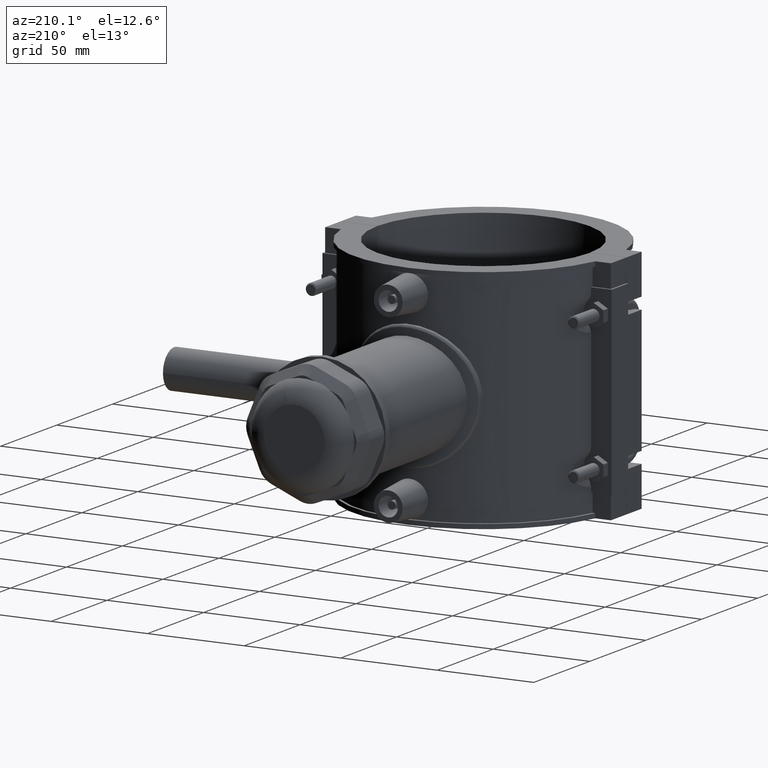
[diagram: clean part render]
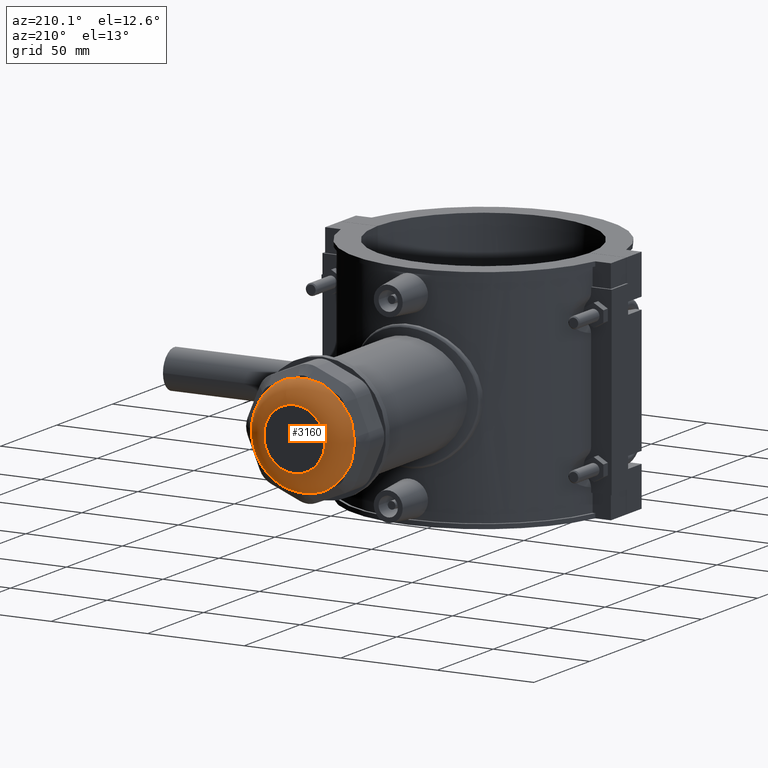
[diagram: same view with one face highlighted and labeled with its STEP entity id]
A machine part, auxiliary view. The second image highlights one B-rep face of the part: STEP entity #3160.
In plain terms, the highlighted toroidal blend (fillet) surface has major radius 15.8227 mm and minor (blend) radius 11 mm.
Its self-contained STEP definition (entity closure, byte-faithful):
#20=TOROIDAL_SURFACE('',#3381,15.8226846506309,11.);
#749=CIRCLE('',#3354,26.4);
#750=CIRCLE('',#3356,26.4);
#751=CIRCLE('',#3358,26.4);
#752=CIRCLE('',#3360,26.4);
#753=CIRCLE('',#3362,26.4);
#754=CIRCLE('',#3364,26.4);
#755=CIRCLE('',#3366,26.4);
#756=CIRCLE('',#3368,26.4);
#761=CIRCLE('',#3382,15.8226846506309);
#847=FACE_BOUND('',#1126,.T.);
#932=FACE_OUTER_BOUND('',#1125,.T.);
#1125=EDGE_LOOP('',(#2300,#2301,#2302,#2303,#2304,#2305,#2306,#2307,#2308,
#2309,#2310,#2311,#2312,#2313,#2314,#2315));
#1126=EDGE_LOOP('',(#2316));
#1329=B_SPLINE_CURVE_WITH_KNOTS('',3,(#4653,#4654,#4655,#4656,#4657,#4658,
#4659,#4660,#4661,#4662,#4663),.UNSPECIFIED.,.F.,.F.,(4,2,3,2,4),(4.45870577634676,
4.56597929259474,4.84390204410088,5.12182479560702,5.229098311855),
 .UNSPECIFIED.);
#1330=B_SPLINE_CURVE_WITH_KNOTS('',3,(#4682,#4683,#4684,#4685,#4686,#4687,
#4688,#4689,#4690,#4691,#4692),.UNSPECIFIED.,.F.,.F.,(4,2,3,2,4),(4.45870577634677,
4.56597929259476,4.84390204410089,5.12182479560702,5.22909831185501),
 .UNSPECIFIED.);
#1331=B_SPLINE_CURVE_WITH_KNOTS('',3,(#4708,#4709,#4710,#4711,#4712,#4713,
#4714,#4715,#4716,#4717,#4718),.UNSPECIFIED.,.F.,.F.,(4,2,3,2,4),(4.45870577634677,
4.56597929259475,4.84390204410089,5.12182479560703,5.22909831185501),
 .UNSPECIFIED.);
#1332=B_SPLINE_CURVE_WITH_KNOTS('',3,(#4734,#4735,#4736,#4737,#4738,#4739,
#4740,#4741,#4742,#4743,#4744),.UNSPECIFIED.,.F.,.F.,(4,2,3,2,4),(4.45870577634676,
4.56597929259474,4.84390204410088,5.12182479560701,5.22909831185499),
 .UNSPECIFIED.);
#1333=B_SPLINE_CURVE_WITH_KNOTS('',3,(#4760,#4761,#4762,#4763,#4764,#4765,
#4766,#4767,#4768,#4769,#4770),.UNSPECIFIED.,.F.,.F.,(4,2,3,2,4),(4.45870577634676,
4.56597929259475,4.84390204410088,5.12182479560702,5.229098311855),
 .UNSPECIFIED.);
#1334=B_SPLINE_CURVE_WITH_KNOTS('',3,(#4786,#4787,#4788,#4789,#4790,#4791,
#4792,#4793,#4794,#4795,#4796),.UNSPECIFIED.,.F.,.F.,(4,2,3,2,4),(4.45870577634677,
4.56597929259476,4.84390204410089,5.12182479560702,5.22909831185501),
 .UNSPECIFIED.);
#1335=B_SPLINE_CURVE_WITH_KNOTS('',3,(#4812,#4813,#4814,#4815,#4816,#4817,
#4818,#4819,#4820,#4821,#4822),.UNSPECIFIED.,.F.,.F.,(4,2,3,2,4),(4.45870577634677,
4.56597929259476,4.84390204410089,5.12182479560702,5.22909831185501),
 .UNSPECIFIED.);
#1336=B_SPLINE_CURVE_WITH_KNOTS('',3,(#4838,#4839,#4840,#4841,#4842,#4843,
#4844,#4845,#4846,#4847,#4848),.UNSPECIFIED.,.F.,.F.,(4,2,3,2,4),(4.45870577634677,
4.56597929259475,4.84390204410089,5.12182479560703,5.22909831185501),
 .UNSPECIFIED.);
#1389=VERTEX_POINT('',#4651);
#1390=VERTEX_POINT('',#4652);
#1397=VERTEX_POINT('',#4680);
#1398=VERTEX_POINT('',#4681);
#1403=VERTEX_POINT('',#4706);
#1404=VERTEX_POINT('',#4707);
#1409=VERTEX_POINT('',#4732);
#1410=VERTEX_POINT('',#4733);
#1415=VERTEX_POINT('',#4758);
#1416=VERTEX_POINT('',#4759);
#1421=VERTEX_POINT('',#4784);
#1422=VERTEX_POINT('',#4785);
#1427=VERTEX_POINT('',#4810);
#1428=VERTEX_POINT('',#4811);
#1433=VERTEX_POINT('',#4836);
#1434=VERTEX_POINT('',#4837);
#1446=VERTEX_POINT('',#4909);
#1696=EDGE_CURVE('',#1389,#1390,#1329,.T.);
#1705=EDGE_CURVE('',#1397,#1398,#1330,.T.);
#1713=EDGE_CURVE('',#1403,#1404,#1331,.T.);
#1721=EDGE_CURVE('',#1409,#1410,#1332,.T.);
#1729=EDGE_CURVE('',#1415,#1416,#1333,.T.);
#1737=EDGE_CURVE('',#1421,#1422,#1334,.T.);
#1745=EDGE_CURVE('',#1427,#1428,#1335,.T.);
#1753=EDGE_CURVE('',#1433,#1434,#1336,.T.);
#1760=EDGE_CURVE('',#1410,#1403,#749,.T.);
#1761=EDGE_CURVE('',#1404,#1397,#750,.T.);
#1762=EDGE_CURVE('',#1398,#1389,#751,.T.);
#1763=EDGE_CURVE('',#1390,#1433,#752,.T.);
#1764=EDGE_CURVE('',#1434,#1427,#753,.T.);
#1765=EDGE_CURVE('',#1428,#1421,#754,.T.);
#1766=EDGE_CURVE('',#1422,#1415,#755,.T.);
#1767=EDGE_CURVE('',#1416,#1409,#756,.T.);
#1785=EDGE_CURVE('',#1446,#1446,#761,.T.);
#2300=ORIENTED_EDGE('',*,*,#1762,.T.);
#2301=ORIENTED_EDGE('',*,*,#1696,.T.);
#2302=ORIENTED_EDGE('',*,*,#1763,.T.);
#2303=ORIENTED_EDGE('',*,*,#1753,.T.);
#2304=ORIENTED_EDGE('',*,*,#1764,.T.);
#2305=ORIENTED_EDGE('',*,*,#1745,.T.);
#2306=ORIENTED_EDGE('',*,*,#1765,.T.);
#2307=ORIENTED_EDGE('',*,*,#1737,.T.);
#2308=ORIENTED_EDGE('',*,*,#1766,.T.);
#2309=ORIENTED_EDGE('',*,*,#1729,.T.);
#2310=ORIENTED_EDGE('',*,*,#1767,.T.);
#2311=ORIENTED_EDGE('',*,*,#1721,.T.);
#2312=ORIENTED_EDGE('',*,*,#1760,.T.);
#2313=ORIENTED_EDGE('',*,*,#1713,.T.);
#2314=ORIENTED_EDGE('',*,*,#1761,.T.);
#2315=ORIENTED_EDGE('',*,*,#1705,.T.);
#2316=ORIENTED_EDGE('',*,*,#1785,.T.);
#3160=ADVANCED_FACE('',(#932,#847),#20,.T.);
#3354=AXIS2_PLACEMENT_3D('',#4859,#3732,#3733);
#3356=AXIS2_PLACEMENT_3D('',#4861,#3736,#3737);
#3358=AXIS2_PLACEMENT_3D('',#4863,#3740,#3741);
#3360=AXIS2_PLACEMENT_3D('',#4865,#3744,#3745);
#3362=AXIS2_PLACEMENT_3D('',#4867,#3748,#3749);
#3364=AXIS2_PLACEMENT_3D('',#4869,#3752,#3753);
#3366=AXIS2_PLACEMENT_3D('',#4871,#3756,#3757);
#3368=AXIS2_PLACEMENT_3D('',#4873,#3760,#3761);
#3381=AXIS2_PLACEMENT_3D('',#4908,#3799,#3800);
#3382=AXIS2_PLACEMENT_3D('',#4910,#3801,#3802);
#3732=DIRECTION('center_axis',(0.,1.,0.));
#3733=DIRECTION('ref_axis',(1.,0.,0.));
#3736=DIRECTION('center_axis',(0.,1.,0.));
#3737=DIRECTION('ref_axis',(1.,0.,0.));
#3740=DIRECTION('center_axis',(0.,1.,0.));
#3741=DIRECTION('ref_axis',(1.,0.,0.));
#3744=DIRECTION('center_axis',(0.,1.,0.));
#3745=DIRECTION('ref_axis',(1.,0.,0.));
#3748=DIRECTION('center_axis',(0.,1.,0.));
#3749=DIRECTION('ref_axis',(1.,0.,0.));
#3752=DIRECTION('center_axis',(0.,1.,0.));
#3753=DIRECTION('ref_axis',(1.,0.,0.));
#3756=DIRECTION('center_axis',(0.,1.,0.));
#3757=DIRECTION('ref_axis',(1.,0.,0.));
#3760=DIRECTION('center_axis',(0.,1.,0.));
#3761=DIRECTION('ref_axis',(1.,0.,0.));
#3799=DIRECTION('center_axis',(0.,1.,0.));
#3800=DIRECTION('ref_axis',(-6.12323399573677E-17,0.,1.));
#3801=DIRECTION('center_axis',(0.,-1.,0.));
#3802=DIRECTION('ref_axis',(-6.12323399573677E-17,0.,1.));
#4651=CARTESIAN_POINT('',(-6.24488360547784,161.02,-25.6507588338831));
#4652=CARTESIAN_POINT('',(-13.7220259688654,161.02,-22.5536250591736));
#4653=CARTESIAN_POINT('Ctrl Pts',(-6.24488360547785,161.02,-25.6507588338831));
#4654=CARTESIAN_POINT('Ctrl Pts',(-6.61458357804202,160.939942363483,-25.5842778525782));
#4655=CARTESIAN_POINT('Ctrl Pts',(-6.98904333653322,160.870644970635,-25.5041784995667));
#4656=CARTESIAN_POINT('Ctrl Pts',(-8.32971874243585,160.663824850459,-25.172713048644));
#4657=CARTESIAN_POINT('Ctrl Pts',(-9.28979362559798,160.596074381177,-24.8483695906621));
#4658=CARTESIAN_POINT('Ctrl Pts',(-10.1456840980504,160.596074381177,-24.4938481490664));
#4659=CARTESIAN_POINT('Ctrl Pts',(-11.0015745705029,160.596074381177,-24.1393267074707));
#4660=CARTESIAN_POINT('Ctrl Pts',(-11.9097954894062,160.663824850459,-23.6897967057124));
#4661=CARTESIAN_POINT('Ctrl Pts',(-13.0921776283665,160.870644970635,-22.9761775029051));
#4662=CARTESIAN_POINT('Ctrl Pts',(-13.4135994585601,160.939942363483,-22.7680332640775));
#4663=CARTESIAN_POINT('Ctrl Pts',(-13.7220259688654,161.02,-22.5536250591736));
#4680=CARTESIAN_POINT('',(13.7220259688655,161.02,-22.5536250591736));
#4681=CARTESIAN_POINT('',(6.24488360547782,161.02,-25.6507588338831));
#4682=CARTESIAN_POINT('Ctrl Pts',(13.7220259688654,161.02,-22.5536250591736));
#4683=CARTESIAN_POINT('Ctrl Pts',(13.4135994585601,160.939942363483,-22.7680332640775));
#4684=CARTESIAN_POINT('Ctrl Pts',(13.0921776283664,160.870644970636,-22.9761775029051));
#4685=CARTESIAN_POINT('Ctrl Pts',(11.9097954894062,160.663824850459,-23.6897967057124));
#4686=CARTESIAN_POINT('Ctrl Pts',(11.0015745705029,160.596074381177,-24.1393267074707));
#4687=CARTESIAN_POINT('Ctrl Pts',(10.1456840980504,160.596074381177,-24.4938481490664));
#4688=CARTESIAN_POINT('Ctrl Pts',(9.289793625598,160.596074381177,-24.8483695906621));
#4689=CARTESIAN_POINT('Ctrl Pts',(8.3297187424359,160.663824850459,-25.172713048644));
#4690=CARTESIAN_POINT('Ctrl Pts',(6.98904333653326,160.870644970636,-25.5041784995667));
#4691=CARTESIAN_POINT('Ctrl Pts',(6.61458357804202,160.939942363483,-25.5842778525782));
#4692=CARTESIAN_POINT('Ctrl Pts',(6.24488360547782,161.02,-25.6507588338831));
#4706=CARTESIAN_POINT('',(25.6507588338831,161.02,-6.24488360547784));
#4707=CARTESIAN_POINT('',(22.5536250591736,161.02,-13.7220259688654));
#4708=CARTESIAN_POINT('Ctrl Pts',(25.6507588338831,161.02,-6.24488360547784));
#4709=CARTESIAN_POINT('Ctrl Pts',(25.5842778525782,160.939942363483,-6.61458357804202));
#4710=CARTESIAN_POINT('Ctrl Pts',(25.5041784995667,160.870644970635,-6.98904333653321));
#4711=CARTESIAN_POINT('Ctrl Pts',(25.172713048644,160.663824850459,-8.32971874243584));
#4712=CARTESIAN_POINT('Ctrl Pts',(24.8483695906621,160.596074381177,-9.28979362559797));
#4713=CARTESIAN_POINT('Ctrl Pts',(24.4938481490664,160.596074381177,-10.1456840980504));
#4714=CARTESIAN_POINT('Ctrl Pts',(24.1393267074707,160.596074381177,-11.0015745705029));
#4715=CARTESIAN_POINT('Ctrl Pts',(23.6897967057124,160.663824850459,-11.9097954894062));
#4716=CARTESIAN_POINT('Ctrl Pts',(22.9761775029051,160.870644970635,-13.0921776283665));
#4717=CARTESIAN_POINT('Ctrl Pts',(22.7680332640775,160.939942363483,-13.4135994585601));
#4718=CARTESIAN_POINT('Ctrl Pts',(22.5536250591736,161.02,-13.7220259688654));
#4732=CARTESIAN_POINT('',(22.5536250591736,161.02,13.7220259688654));
#4733=CARTESIAN_POINT('',(25.6507588338831,161.02,6.24488360547789));
#4734=CARTESIAN_POINT('Ctrl Pts',(22.5536250591736,161.02,13.7220259688654));
#4735=CARTESIAN_POINT('Ctrl Pts',(22.7680332640775,160.939942363483,13.4135994585601));
#4736=CARTESIAN_POINT('Ctrl Pts',(22.9761775029051,160.870644970635,13.0921776283665));
#4737=CARTESIAN_POINT('Ctrl Pts',(23.6897967057124,160.663824850459,11.9097954894062));
#4738=CARTESIAN_POINT('Ctrl Pts',(24.1393267074707,160.596074381177,11.0015745705029));
#4739=CARTESIAN_POINT('Ctrl Pts',(24.4938481490664,160.596074381177,10.1456840980505));
#4740=CARTESIAN_POINT('Ctrl Pts',(24.8483695906621,160.596074381177,9.28979362559799));
#4741=CARTESIAN_POINT('Ctrl Pts',(25.172713048644,160.663824850459,8.32971874243587));
#4742=CARTESIAN_POINT('Ctrl Pts',(25.5041784995667,160.870644970635,6.98904333653326));
#4743=CARTESIAN_POINT('Ctrl Pts',(25.5842778525782,160.939942363483,6.61458357804207));
#4744=CARTESIAN_POINT('Ctrl Pts',(25.6507588338831,161.02,6.24488360547789));
#4758=CARTESIAN_POINT('',(6.2448836054778,161.02,25.6507588338831));
#4759=CARTESIAN_POINT('',(13.7220259688654,161.02,22.5536250591736));
#4760=CARTESIAN_POINT('Ctrl Pts',(6.24488360547781,161.02,25.6507588338831));
#4761=CARTESIAN_POINT('Ctrl Pts',(6.61458357804201,160.939942363483,25.5842778525782));
#4762=CARTESIAN_POINT('Ctrl Pts',(6.98904333653324,160.870644970635,25.5041784995667));
#4763=CARTESIAN_POINT('Ctrl Pts',(8.32971874243589,160.663824850459,25.172713048644));
#4764=CARTESIAN_POINT('Ctrl Pts',(9.28979362559799,160.596074381177,24.8483695906622));
#4765=CARTESIAN_POINT('Ctrl Pts',(10.1456840980504,160.596074381177,24.4938481490664));
#4766=CARTESIAN_POINT('Ctrl Pts',(11.0015745705029,160.596074381177,24.1393267074707));
#4767=CARTESIAN_POINT('Ctrl Pts',(11.9097954894062,160.663824850459,23.6897967057124));
#4768=CARTESIAN_POINT('Ctrl Pts',(13.0921776283664,160.870644970636,22.9761775029051));
#4769=CARTESIAN_POINT('Ctrl Pts',(13.4135994585601,160.939942363483,22.7680332640775));
#4770=CARTESIAN_POINT('Ctrl Pts',(13.7220259688654,161.02,22.5536250591736));
#4784=CARTESIAN_POINT('',(-13.7220259688654,161.02,22.5536250591736));
#4785=CARTESIAN_POINT('',(-6.24488360547785,161.02,25.6507588338831));
#4786=CARTESIAN_POINT('Ctrl Pts',(-13.7220259688654,161.02,22.5536250591736));
#4787=CARTESIAN_POINT('Ctrl Pts',(-13.4135994585601,160.939942363483,22.7680332640775));
#4788=CARTESIAN_POINT('Ctrl Pts',(-13.0921776283664,160.870644970635,22.9761775029051));
#4789=CARTESIAN_POINT('Ctrl Pts',(-11.9097954894062,160.663824850459,23.6897967057124));
#4790=CARTESIAN_POINT('Ctrl Pts',(-11.0015745705029,160.596074381177,24.1393267074707));
#4791=CARTESIAN_POINT('Ctrl Pts',(-10.1456840980505,160.596074381177,24.4938481490664));
#4792=CARTESIAN_POINT('Ctrl Pts',(-9.289793625598,160.596074381177,24.8483695906621));
#4793=CARTESIAN_POINT('Ctrl Pts',(-8.32971874243591,160.663824850459,25.172713048644));
#4794=CARTESIAN_POINT('Ctrl Pts',(-6.98904333653328,160.870644970635,25.5041784995667));
#4795=CARTESIAN_POINT('Ctrl Pts',(-6.61458357804204,160.939942363483,25.5842778525782));
#4796=CARTESIAN_POINT('Ctrl Pts',(-6.24488360547785,161.02,25.6507588338831));
#4810=CARTESIAN_POINT('',(-25.6507588338831,161.02,6.24488360547781));
#4811=CARTESIAN_POINT('',(-22.5536250591736,161.02,13.7220259688654));
#4812=CARTESIAN_POINT('Ctrl Pts',(-25.6507588338831,161.02,6.24488360547781));
#4813=CARTESIAN_POINT('Ctrl Pts',(-25.5842778525782,160.939942363483,6.61458357804204));
#4814=CARTESIAN_POINT('Ctrl Pts',(-25.5041784995667,160.870644970635,6.98904333653328));
#4815=CARTESIAN_POINT('Ctrl Pts',(-25.172713048644,160.663824850459,8.32971874243593));
#4816=CARTESIAN_POINT('Ctrl Pts',(-24.8483695906622,160.596074381177,9.28979362559801));
#4817=CARTESIAN_POINT('Ctrl Pts',(-24.4938481490664,160.596074381177,10.1456840980504));
#4818=CARTESIAN_POINT('Ctrl Pts',(-24.1393267074707,160.596074381177,11.0015745705029));
#4819=CARTESIAN_POINT('Ctrl Pts',(-23.6897967057124,160.663824850459,11.9097954894062));
#4820=CARTESIAN_POINT('Ctrl Pts',(-22.9761775029051,160.870644970635,13.0921776283664));
#4821=CARTESIAN_POINT('Ctrl Pts',(-22.7680332640775,160.939942363483,13.4135994585601));
#4822=CARTESIAN_POINT('Ctrl Pts',(-22.5536250591736,161.02,13.7220259688654));
#4836=CARTESIAN_POINT('',(-22.5536250591736,161.02,-13.7220259688655));
#4837=CARTESIAN_POINT('',(-25.6507588338831,161.02,-6.24488360547782));
#4838=CARTESIAN_POINT('Ctrl Pts',(-22.5536250591736,161.02,-13.7220259688655));
#4839=CARTESIAN_POINT('Ctrl Pts',(-22.7680332640775,160.939942363483,-13.4135994585601));
#4840=CARTESIAN_POINT('Ctrl Pts',(-22.9761775029051,160.870644970635,-13.0921776283665));
#4841=CARTESIAN_POINT('Ctrl Pts',(-23.6897967057124,160.663824850459,-11.9097954894062));
#4842=CARTESIAN_POINT('Ctrl Pts',(-24.1393267074707,160.596074381177,-11.0015745705029));
#4843=CARTESIAN_POINT('Ctrl Pts',(-24.4938481490664,160.596074381177,-10.1456840980504));
#4844=CARTESIAN_POINT('Ctrl Pts',(-24.8483695906621,160.596074381177,-9.28979362559798));
#4845=CARTESIAN_POINT('Ctrl Pts',(-25.1727130486441,160.663824850459,-8.32971874243585));
#4846=CARTESIAN_POINT('Ctrl Pts',(-25.5041784995667,160.870644970635,-6.98904333653321));
#4847=CARTESIAN_POINT('Ctrl Pts',(-25.5842778525782,160.939942363483,-6.61458357804201));
#4848=CARTESIAN_POINT('Ctrl Pts',(-25.6507588338831,161.02,-6.24488360547782));
#4859=CARTESIAN_POINT('Origin',(0.,161.02,0.));
#4861=CARTESIAN_POINT('Origin',(0.,161.02,0.));
#4863=CARTESIAN_POINT('Origin',(0.,161.02,0.));
#4865=CARTESIAN_POINT('Origin',(0.,161.02,0.));
#4867=CARTESIAN_POINT('Origin',(0.,161.02,0.));
#4869=CARTESIAN_POINT('Origin',(0.,161.02,0.));
#4871=CARTESIAN_POINT('Origin',(0.,161.02,0.));
#4873=CARTESIAN_POINT('Origin',(0.,161.02,0.));
#4908=CARTESIAN_POINT('Origin',(0.,158.,0.));
#4909=CARTESIAN_POINT('',(2.90658001669696E-15,169.,-15.8226846506309));
#4910=CARTESIAN_POINT('Origin',(0.,169.,0.));